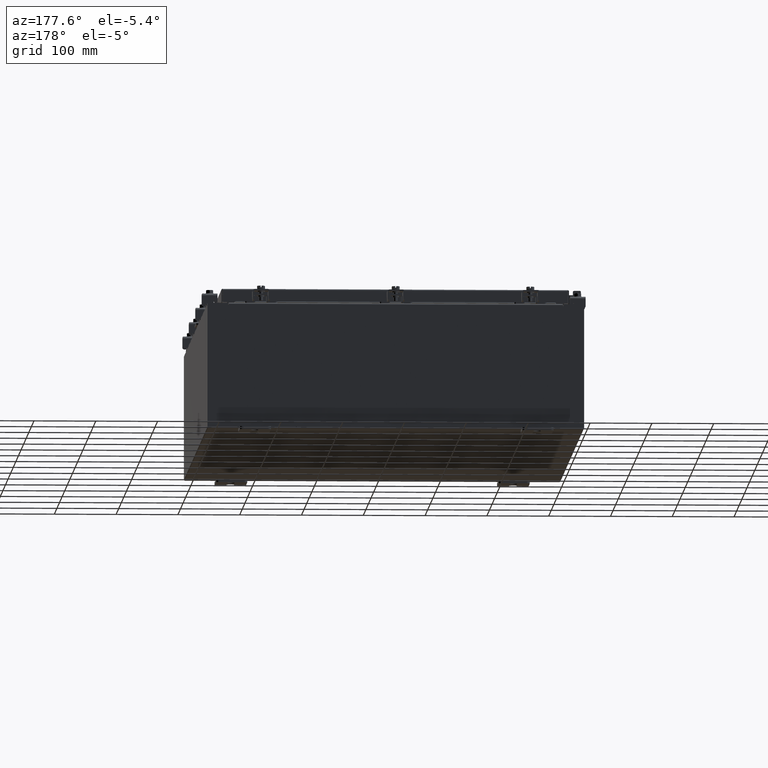
[diagram: clean part render]
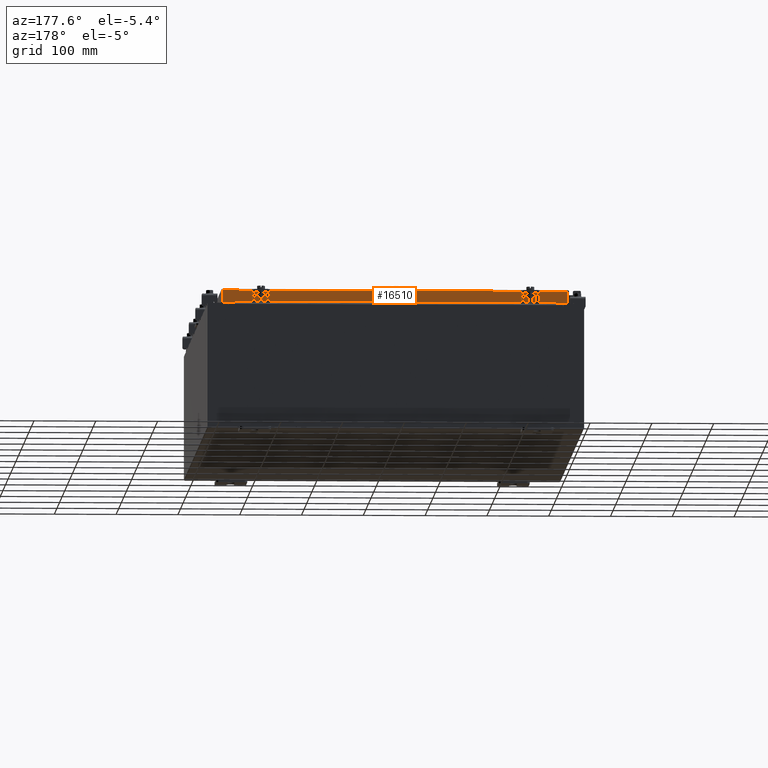
[diagram: same view with one face highlighted and labeled with its STEP entity id]
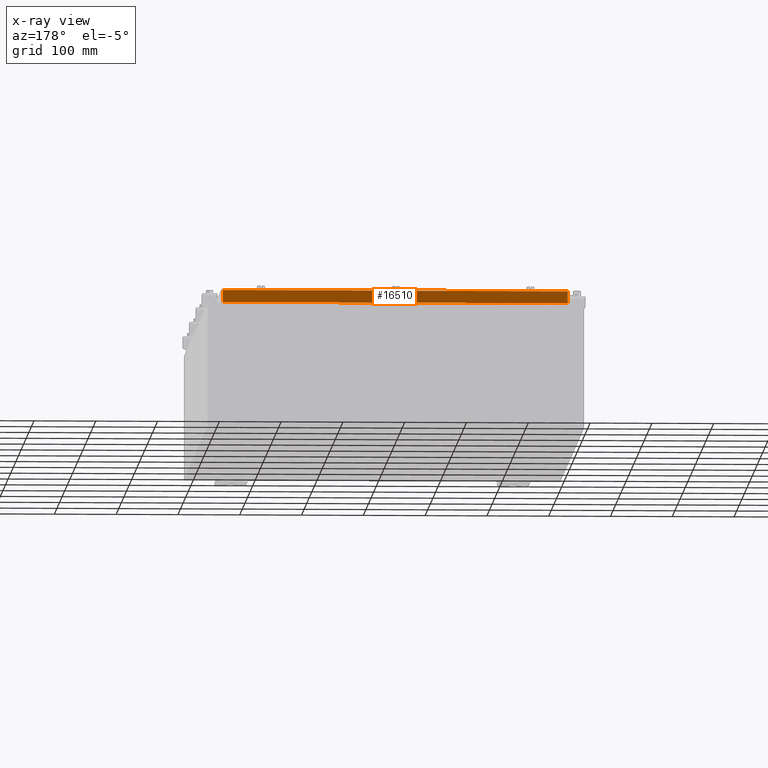
[diagram: x-ray of the same camera — body ghosted, the highlighted face saturated]
A machine part, auxiliary view. The second image highlights one B-rep face of the part: STEP entity #16510.
The next image is the same camera in x-ray: the body ghosted, the highlighted face saturated — about 0% of this face is hidden behind the body in this view.
In plain terms, the highlighted planar face has unit normal (0, -1, -0).
Its self-contained STEP definition (entity closure, byte-faithful):
#613 = VERTEX_POINT ( 'NONE', #5984 ) ;
#948 = DIRECTION ( 'NONE',  ( 1.000000000000000000, -0.0000000000000000000, -0.0000000000000000000 ) ) ;
#1538 = VERTEX_POINT ( 'NONE', #11165 ) ;
#2464 = CARTESIAN_POINT ( 'NONE',  ( 10.98915786437626700, 17.09400000000000100, -0.8499999999999996400 ) ) ;
#2657 = VECTOR ( 'NONE', #11198, 39.37007874015748100 ) ;
#3099 = LINE ( 'NONE', #5138, #16862 ) ;
#3168 = CARTESIAN_POINT ( 'NONE',  ( -10.98915786437626900, 17.09399999999999800, -0.08770000000000007000 ) ) ;
#3329 = CARTESIAN_POINT ( 'NONE',  ( -5.941356432273423300E-030, 17.09399999999999800, 4.844676449176213100E-014 ) ) ;
#3404 = CARTESIAN_POINT ( 'NONE',  ( -10.98915786437626900, 17.09400000000000100, -0.8500000000000024200 ) ) ;
#4490 = CARTESIAN_POINT ( 'NONE',  ( -10.23915786437626700, 17.09399999999999100, -0.8500000000000033100 ) ) ;
#4541 = VECTOR ( 'NONE', #22436, 39.37007874015748100 ) ;
#4978 = ORIENTED_EDGE ( 'NONE', *, *, #6075, .T. ) ;
#5138 = CARTESIAN_POINT ( 'NONE',  ( -10.98915786437626900, 17.09399999999999800, -0.07469999999999978000 ) ) ;
#5147 = DIRECTION ( 'NONE',  ( 3.475696988576941300E-031, -1.000000000000000000, -2.818880942772350300E-015 ) ) ;
#5615 = LINE ( 'NONE', #13975, #14580 ) ;
#5858 = VERTEX_POINT ( 'NONE', #20847 ) ;
#5903 = LINE ( 'NONE', #7061, #11243 ) ;
#5984 = CARTESIAN_POINT ( 'NONE',  ( 10.23915786437626700, 17.09399999999999100, -0.8500000000000033100 ) ) ;
#6075 = EDGE_CURVE ( 'NONE', #1538, #14000, #5903, .T. ) ;
#6448 = VECTOR ( 'NONE', #948, 39.37007874015748100 ) ;
#6687 = VERTEX_POINT ( 'NONE', #3404 ) ;
#7061 = CARTESIAN_POINT ( 'NONE',  ( 10.98915786437626700, 17.09399999999999800, 4.844676449176213100E-014 ) ) ;
#8104 = ORIENTED_EDGE ( 'NONE', *, *, #19664, .F. ) ;
#8704 = PLANE ( 'NONE',  #21897 ) ;
#8921 = ORIENTED_EDGE ( 'NONE', *, *, #18576, .F. ) ;
#11121 = CARTESIAN_POINT ( 'NONE',  ( -11.07800000000000300, 17.09400000000000100, -0.8500000000000024200 ) ) ;
#11165 = CARTESIAN_POINT ( 'NONE',  ( 10.98915786437626700, 17.09399999999999800, -0.08770000000000007000 ) ) ;
#11198 = DIRECTION ( 'NONE',  ( 1.000000000000000000, -4.379057701015054300E-047, 1.233005954894504400E-016 ) ) ;
#11243 = VECTOR ( 'NONE', #23200, 39.37007874015748100 ) ;
#13915 = EDGE_CURVE ( 'NONE', #613, #14000, #17002, .T. ) ;
#13975 = CARTESIAN_POINT ( 'NONE',  ( -11.07800000000000300, 17.09400000000000100, -0.8500000000000024200 ) ) ;
#14000 = VERTEX_POINT ( 'NONE', #2464 ) ;
#14580 = VECTOR ( 'NONE', #21184, 39.37007874015748100 ) ;
#14704 = VERTEX_POINT ( 'NONE', #3168 ) ;
#15183 = EDGE_LOOP ( 'NONE', ( #21810, #4978, #18760, #8104, #8921, #20266 ) ) ;
#15722 = EDGE_CURVE ( 'NONE', #1538, #14704, #18891, .T. ) ;
#15880 = DIRECTION ( 'NONE',  ( -0.0000000000000000000, 2.818880942772350300E-015, -1.000000000000000000 ) ) ;
#16058 = FACE_OUTER_BOUND ( 'NONE', #15183, .T. ) ;
#16510 = ADVANCED_FACE ( 'NONE', ( #16058 ), #8704, .F. ) ;
#16862 = VECTOR ( 'NONE', #15880, 39.37007874015748100 ) ;
#17002 = LINE ( 'NONE', #11121, #2657 ) ;
#17702 = DIRECTION ( 'NONE',  ( 0.0000000000000000000, 2.818880942772350300E-015, -1.000000000000000000 ) ) ;
#17945 = EDGE_CURVE ( 'NONE', #14704, #6687, #3099, .T. ) ;
#18576 = EDGE_CURVE ( 'NONE', #6687, #5858, #5615, .T. ) ;
#18760 = ORIENTED_EDGE ( 'NONE', *, *, #13915, .F. ) ;
#18891 = LINE ( 'NONE', #20706, #4541 ) ;
#19664 = EDGE_CURVE ( 'NONE', #5858, #613, #20755, .T. ) ;
#20266 = ORIENTED_EDGE ( 'NONE', *, *, #17945, .F. ) ;
#20706 = CARTESIAN_POINT ( 'NONE',  ( -11.07800000000000300, 17.09399999999999800, -0.08770000000000007000 ) ) ;
#20755 = LINE ( 'NONE', #4490, #6448 ) ;
#20847 = CARTESIAN_POINT ( 'NONE',  ( -10.23915786437626700, 17.09399999999999100, -0.8500000000000033100 ) ) ;
#21184 = DIRECTION ( 'NONE',  ( 1.000000000000000000, -4.379057701015054300E-047, 1.233005954894504400E-016 ) ) ;
#21810 = ORIENTED_EDGE ( 'NONE', *, *, #15722, .F. ) ;
#21897 = AXIS2_PLACEMENT_3D ( 'NONE', #3329, #5147, #17702 ) ;
#22436 = DIRECTION ( 'NONE',  ( -1.000000000000000000, -3.475696988576942200E-031, -9.473942235605600700E-046 ) ) ;
#23200 = DIRECTION ( 'NONE',  ( 0.0000000000000000000, 2.818880942772350300E-015, -1.000000000000000000 ) ) ;